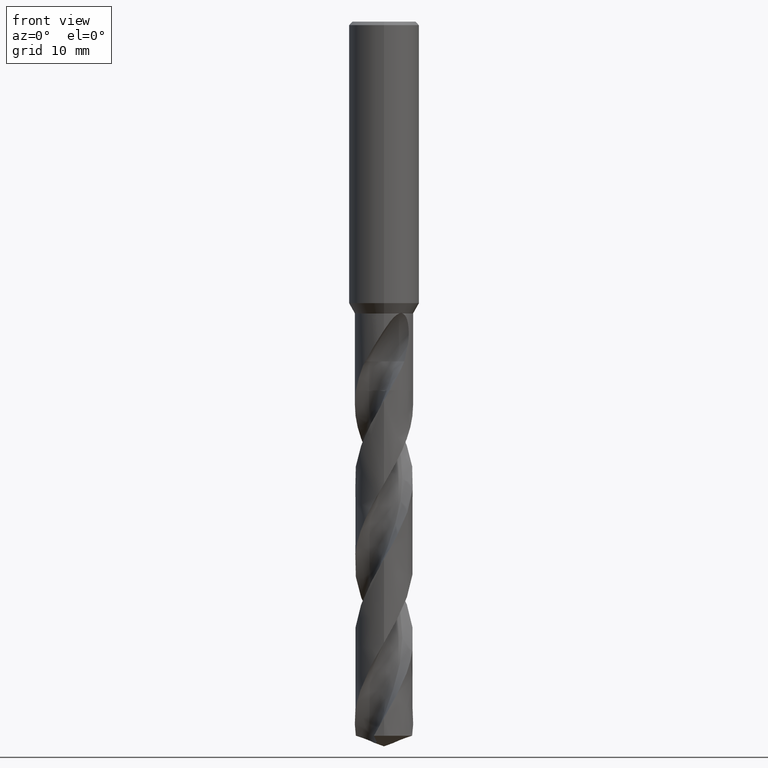
[diagram: clean part render]
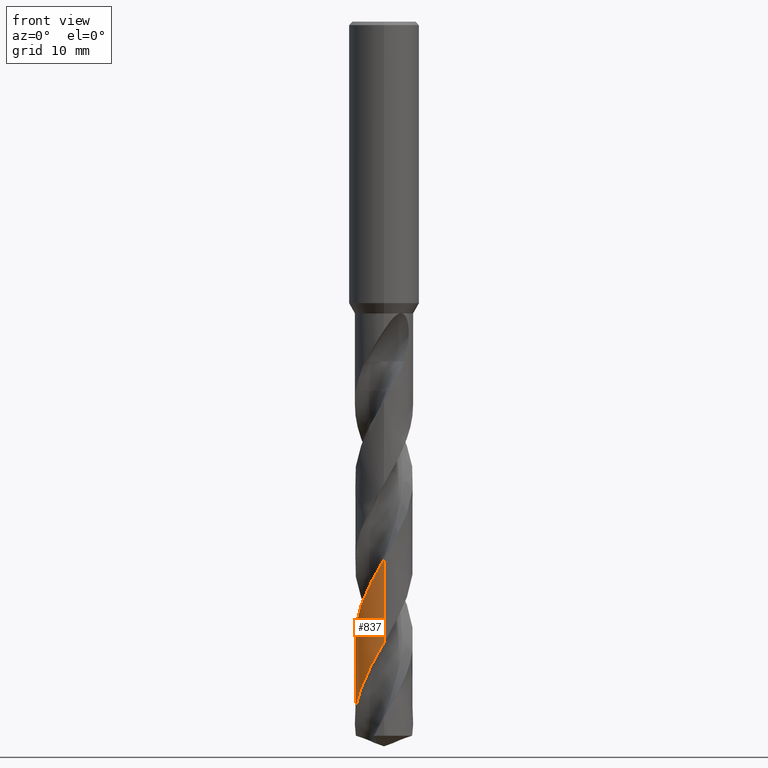
[diagram: same view with one face highlighted and labeled with its STEP entity id]
A machine part, front view. The second image highlights one B-rep face of the part: STEP entity #837.
In plain terms, the highlighted conical surface has half-angle 0 deg.
Its self-contained STEP definition (entity closure, byte-faithful):
#345=EDGE_CURVE('',#585,#783,#917,.T.);
#461=VERTEX_POINT('',#1049);
#543=EDGE_CURVE('',#585,#549,#1139,.T.);
#549=VERTEX_POINT('',#1145);
#575=EDGE_CURVE('',#609,#783,#1172,.T.);
#585=VERTEX_POINT('',#1182);
#609=VERTEX_POINT('',#1209);
#675=EDGE_CURVE('',#461,#609,#1280,.T.);
#773=EDGE_CURVE('',#549,#461,#1388,.T.);
#783=VERTEX_POINT('',#1399);
#837=ADVANCED_FACE('',(#1458),#1459,.T.);
#917=CIRCLE('',#1627,4.15);
#1049=CARTESIAN_POINT('',(-9.8340353032395E-013,-4.14994886221189,-76.3862270031662));
#1139=B_SPLINE_CURVE_WITH_KNOTS('',3,(#3986,#3987,#3988,#3989,#3990,#3991,#3992,#3993,#3994,#3995,#3996,#3997,#3998,#3999,#4000,#4001,#4002,#4003,#4004,#4005,#4006,#4007,#4008,#4009,#4010,#4011,#4012,#4013,#4014,#4015,#4016,#4017,#4018,#4019,#4020,#4021,#4022,#4023,#4024,#4025,#4026,#4027,#4028,#4029,#4030,#4031,#4032,#4033,#4034,#4035,#4036,#4037,#4038,#4039,#4040,#4041,#4042,#4043,#4044,#4045,#4046,#4047,#4048,#4049,#4050,#4051,#4052,#4053,#4054,#4055,#4056,#4057,#4058,#4059),.UNSPECIFIED.,.F.,.F.,(4,2,2,2,2,2,2,2,2,2,2,2,2,2,2,2,2,2,2,2,2,2,2,2,2,2,2,2,2,2,2,2,2,2,2,2,4),(0.0,0.733119962136167,3.94510879813884,4.34369131643443,5.32151416461971,6.12538844798272,6.17531505432983,7.64100654946401,8.37814269390565,9.8527233512437,10.575811062794,13.3147641823529,15.249658534027,17.2118726950978,19.1514968289801,21.1132472757636,23.0534574584097,25.0148424830024,26.9564301644431,28.9178713151104,30.9513168632988,33.1021604851118,34.7661922859804,36.5871046538584,37.1115938430845,37.9562288501293,41.3386930440463,41.9212233386471,45.3037452177209,45.8576423691643,48.8209535436904,50.3189651381546,53.4896423513451,53.5390767551717,55.1003001866832,55.8799575069006,56.6606755830554),.UNSPECIFIED.);
#1145=CARTESIAN_POINT('',(6.98160187065E-016,-4.14997308674582,-88.27793528246));
#1172=LINE('',#4798,#4799);
#1182=CARTESIAN_POINT('',(-4.00286083124981,1.09526488378203,-101.489523527795));
#1209=CARTESIAN_POINT('',(-3.36276316489481E-015,4.14999484291634,-98.9579357328024));
#1280=B_SPLINE_CURVE_WITH_KNOTS('',3,(#6514,#6515,#6516,#6517,#6518,#6519,#6520,#6521,#6522,#6523,#6524,#6525,#6526,#6527,#6528,#6529,#6530,#6531,#6532,#6533,#6534,#6535,#6536,#6537,#6538,#6539,#6540,#6541,#6542,#6543,#6544,#6545,#6546,#6547,#6548,#6549,#6550,#6551,#6552,#6553,#6554,#6555,#6556,#6557,#6558,#6559,#6560,#6561,#6562,#6563,#6564,#6565,#6566,#6567,#6568,#6569,#6570,#6571,#6572,#6573,#6574,#6575,#6576,#6577,#6578,#6579,#6580,#6581,#6582,#6583,#6584,#6585,#6586,#6587,#6588,#6589,#6590,#6591,#6592,#6593),.UNSPECIFIED.,.F.,.F.,(4,2,2,2,2,2,2,2,2,2,2,2,2,2,2,2,2,2,2,2,2,2,2,2,2,2,2,2,2,2,2,2,2,2,2,2,2,2,2,4),(0.0,0.586323067433811,2.00032587518458,2.80826885337776,3.60002817015878,4.36102634170996,4.76487063530696,5.52221860866281,6.87547708728846,7.3452181545955,10.3637754003876,12.139995461408,14.502759818268,15.3668709821972,18.3301455580527,20.1540144764571,22.4042918982399,23.2648435883228,26.1943236443563,28.0619265002188,30.0624330206784,32.0233662836091,34.2830585381587,35.1337158030373,38.0947299511382,39.9172825066326,41.8348863796892,43.852057861484,45.2622052300865,45.9985746502462,46.9813536521083,49.2718370121449,50.1990534031825,51.0079979685766,52.4267538570986,52.6927656751572,53.6929488001075,55.1954998972303,55.9462757200825,56.696452853873),.UNSPECIFIED.);
#1388=LINE('',#9299,#9300);
#1399=CARTESIAN_POINT('',(-5.08211636836286E-016,4.15,-101.489523527795));
#1458=FACE_OUTER_BOUND('',#9522,.T.);
#1459=CONICAL_SURFACE('',#9523,4.14995,2.03709453286926E-006);
#1627=AXIS2_PLACEMENT_3D('',#9890,#9891,#9892);
#3986=CARTESIAN_POINT('',(-4.00286083124982,1.09526488378203,-101.489523527795));
#3987=CARTESIAN_POINT('',(-4.03504066271313,0.977655728950244,-101.277743299675));
#3988=CARTESIAN_POINT('',(-4.06201011384078,0.858797654476587,-101.064850626866));
#3989=CARTESIAN_POINT('',(-4.17914587385562,0.210965987961346,-99.9207766518387));
#3990=CARTESIAN_POINT('',(-4.17149755588382,-0.330608218742273,-99.0052227548003));
#3991=CARTESIAN_POINT('',(-4.04702340763602,-0.921129931299631,-97.9593980896529));
#3992=CARTESIAN_POINT('',(-4.03172994710662,-0.985910536822844,-97.843831378145));
#3993=CARTESIAN_POINT('',(-3.97357622724045,-1.20820974671838,-97.4453482115644));
#3994=CARTESIAN_POINT('',(-3.92294640169079,-1.36369350358373,-97.1630093298879));
#3995=CARTESIAN_POINT('',(-3.8141033179038,-1.64106902712961,-96.6475302097936));
#3996=CARTESIAN_POINT('',(-3.75899442182016,-1.7636247738402,-96.4152861525449));
#3997=CARTESIAN_POINT('',(-3.6943372460219,-1.89059560983668,-96.1680921449709));
#3998=CARTESIAN_POINT('',(-3.69053573211859,-1.89800562287905,-96.1536413678278));
#3999=CARTESIAN_POINT('',(-3.5742942749695,-2.12291440030594,-95.7144563261599));
#4000=CARTESIAN_POINT('',(-3.44275266010804,-2.33024441643967,-95.2921013555985));
#4001=CARTESIAN_POINT('',(-3.2184128193831,-2.62286627300436,-94.6543537529134));
#4002=CARTESIAN_POINT('',(-3.13905767063328,-2.71733091713232,-94.4407123580425));
#4003=CARTESIAN_POINT('',(-2.88883969380872,-2.98960847752257,-93.8003976103759));
#4004=CARTESIAN_POINT('',(-2.70643187817836,-3.15562739345708,-93.3758597433649));
#4005=CARTESIAN_POINT('',(-2.41480373869133,-3.37721743262094,-92.7389793771779));
#4006=CARTESIAN_POINT('',(-2.31552818942792,-3.44605829696359,-92.5284513332559));
#4007=CARTESIAN_POINT('',(-1.82547022316747,-3.755002535148,-91.5235418678276));
#4008=CARTESIAN_POINT('',(-1.40007492136837,-3.93348288653247,-90.7451698808831));
#4009=CARTESIAN_POINT('',(-0.638700762875209,-4.11330122043334,-89.3902404456546));
#4010=CARTESIAN_POINT('',(-0.315930275489004,-4.150641464583,-88.8241412346744));
#4011=CARTESIAN_POINT('',(0.337806485620592,-4.14927706743415,-87.6939062714144));
#4012=CARTESIAN_POINT('',(0.665493723450718,-4.10943836864885,-87.1311549892286));
#4013=CARTESIAN_POINT('',(1.30062518471142,-3.9542693037718,-85.999542964849));
#4014=CARTESIAN_POINT('',(1.6060438598501,-3.84041913324769,-85.4323270855775));
#4015=CARTESIAN_POINT('',(2.18850943928793,-3.54133233999955,-84.3006472206212));
#4016=CARTESIAN_POINT('',(2.4622464239698,-3.35673622004514,-83.7378304449957));
#4017=CARTESIAN_POINT('',(2.95743497346943,-2.92942538638761,-82.6059180029684));
#4018=CARTESIAN_POINT('',(3.177644092677,-2.68900715728512,-82.0383217950532));
#4019=CARTESIAN_POINT('',(3.56019809962554,-2.157655759826,-80.9063583493413));
#4020=CARTESIAN_POINT('',(3.71995498628274,-1.86875357326637,-80.3435892494735));
#4021=CARTESIAN_POINT('',(3.9666132691593,-1.26257379099911,-79.2113491623315));
#4022=CARTESIAN_POINT('',(4.05331615848658,-0.948080209579002,-78.6433720256095));
#4023=CARTESIAN_POINT('',(4.15210135779381,-0.30073966376471,-77.5110211287447));
#4024=CARTESIAN_POINT('',(4.16286243563838,0.0292031213900084,-76.9482542342553));
#4025=CARTESIAN_POINT('',(4.1052444577117,0.696644840980988,-75.7895266640975));
#4026=CARTESIAN_POINT('',(4.03427834066105,1.03107071664337,-75.1947491400784));
#4027=CARTESIAN_POINT('',(3.80522546828506,1.6948692679812,-73.9810175393926));
#4028=CARTESIAN_POINT('',(3.64359698031552,2.01887360692878,-73.3651163403327));
#4029=CARTESIAN_POINT('',(3.28697934412767,2.54859972985332,-72.2580115767764));
#4030=CARTESIAN_POINT('',(3.10850483738276,2.7635547757794,-71.7709921611557));
#4031=CARTESIAN_POINT('',(2.69129450921086,3.17369855010188,-70.7589191275941));
#4032=CARTESIAN_POINT('',(2.45022798092235,3.36332653160746,-70.2352118870299));
#4033=CARTESIAN_POINT('',(2.11550376503302,3.57132612703493,-69.5545369313536));
#4034=CARTESIAN_POINT('',(2.03931561837821,3.61536489135379,-69.4023641816305));
#4035=CARTESIAN_POINT('',(1.83728483742688,3.72375354848006,-69.0045687433204));
#4036=CARTESIAN_POINT('',(1.70974800795879,3.78397939709404,-68.7581366416652));
#4037=CARTESIAN_POINT('',(1.05867954271813,4.05197820978874,-67.5324781895851));
#4038=CARTESIAN_POINT('',(0.500198915509941,4.157918701973,-66.5824873902307));
#4039=CARTESIAN_POINT('',(-0.159278628045266,4.1480007684965,-65.4345537535467));
#4040=CARTESIAN_POINT('',(-0.255827069197382,4.1431671893572,-65.2655329761599));
#4041=CARTESIAN_POINT('',(-0.91316890963133,4.08714268073476,-64.117093673756));
#4042=CARTESIAN_POINT('',(-1.45754746612428,3.92595406521365,-63.1684460864815));
#4043=CARTESIAN_POINT('',(-2.03447362167824,3.61817849226968,-62.0299117236023));
#4044=CARTESIAN_POINT('',(-2.11393608649308,3.57233118946485,-61.8694001149606));
#4045=CARTESIAN_POINT('',(-2.60945298085117,3.26409274044161,-60.8525140771719));
#4046=CARTESIAN_POINT('',(-2.97818509056936,2.93192305082293,-60.0162718507665));
#4047=CARTESIAN_POINT('',(-3.43357947129834,2.34406764895128,-58.7308568167197));
#4048=CARTESIAN_POINT('',(-3.56801388812336,2.13377870463037,-58.2967699271014));
#4049=CARTESIAN_POINT('',(-3.92561355716439,1.44530461308424,-56.9517384287197));
#4050=CARTESIAN_POINT('',(-4.07705321721444,0.936012705416754,-56.0520129936649));
#4051=CARTESIAN_POINT('',(-4.1301640999389,0.404385781712552,-55.1247942966925));
#4052=CARTESIAN_POINT('',(-4.1309547027472,0.396227793785232,-55.1105670046392));
#4053=CARTESIAN_POINT('',(-4.15596300872301,0.129947839233376,-54.6464363698268));
#4054=CARTESIAN_POINT('',(-4.15599510042753,-0.130144303806569,-54.1994393672908));
#4055=CARTESIAN_POINT('',(-4.11948157093959,-0.518075732752643,-53.5256073673882));
#4056=CARTESIAN_POINT('',(-4.10127565016572,-0.646504711659597,-53.3012527130088));
#4057=CARTESIAN_POINT('',(-4.05299455015468,-0.900945878530776,-52.8519320371249));
#4058=CARTESIAN_POINT('',(-4.02311329375068,-1.025975181467,-52.6277129986327));
#4059=CARTESIAN_POINT('',(-3.9876645377204,-1.14900027233581,-52.4048038270217));
#4798=CARTESIAN_POINT('',(-5.08271900396723E-016,4.14995,-76.9447617638976));
#4799=VECTOR('',#10161,1.0);
#6514=CARTESIAN_POINT('',(-0.809450641502194,4.07019160860088,-52.4036524301839));
#6515=CARTESIAN_POINT('',(-0.713554071194105,4.08926318517703,-52.5728780666497));
#6516=CARTESIAN_POINT('',(-0.617061507869635,4.10493025676811,-52.7422326771811));
#6517=CARTESIAN_POINT('',(-0.286437898108493,4.14670141869942,-53.3196699330514));
#6518=CARTESIAN_POINT('',(-0.0505770864741414,4.15628267541381,-53.7268509006525));
#6519=CARTESIAN_POINT('',(0.319420468947908,4.1397838602985,-54.3681220203433));
#6520=CARTESIAN_POINT('',(0.453611417218903,4.12723803772816,-54.6011374700635));
#6521=CARTESIAN_POINT('',(0.717674425384147,4.08950957126924,-55.0627661745399));
#6522=CARTESIAN_POINT('',(0.847371198748661,4.06461501494834,-55.2910471673395));
#6523=CARTESIAN_POINT('',(1.09891703601151,4.00377262506163,-55.7392168681408));
#6524=CARTESIAN_POINT('',(1.22076943418806,3.9683171334602,-55.9587997088806));
#6525=CARTESIAN_POINT('',(1.40450965677961,3.90558822200232,-56.2950048140758));
#6526=CARTESIAN_POINT('',(1.46767830751557,3.88229193545421,-56.4115444989714));
#6527=CARTESIAN_POINT('',(1.6476155530438,3.81091154178771,-56.7466765120219));
#6528=CARTESIAN_POINT('',(1.76279246623565,3.75902280952958,-56.9651146678288));
#6529=CARTESIAN_POINT('',(2.0766879031118,3.6000036306962,-57.5742414334145));
#6530=CARTESIAN_POINT('',(2.26932078090337,3.48179139183426,-57.9640123006853));
#6531=CARTESIAN_POINT('',(2.51460993037964,3.30221831129288,-58.4900852976674));
#6532=CARTESIAN_POINT('',(2.57645851427004,3.25419176556882,-58.6255557785414));
#6533=CARTESIAN_POINT('',(3.02531174575587,2.88483915593859,-59.6326795782373));
#6534=CARTESIAN_POINT('',(3.35287544725406,2.49681190181006,-60.4989856153255));
#6535=CARTESIAN_POINT('',(3.75014293693105,1.80172679035776,-61.8828013512578));
#6536=CARTESIAN_POINT('',(3.86910152505008,1.52951649276333,-62.3942119494236));
#6537=CARTESIAN_POINT('',(4.07631739607947,0.871995348235847,-63.589768151126));
#6538=CARTESIAN_POINT('',(4.14075449224596,0.481282815055007,-64.2682467037824));
#6539=CARTESIAN_POINT('',(4.15203703109984,-0.0573410979354688,-65.1995098309693));
#6540=CARTESIAN_POINT('',(4.147534555915,-0.20150380329665,-65.4484810533826));
#6541=CARTESIAN_POINT('',(4.09447556431875,-0.837417899060476,-66.5539029055257));
#6542=CARTESIAN_POINT('',(3.9657189469699,-1.3190801246937,-67.4050175280715));
#6543=CARTESIAN_POINT('',(3.62527935989835,-2.04257202817353,-68.7872557268848));
#6544=CARTESIAN_POINT('',(3.46576062486579,-2.30279007024165,-69.3127294062759));
#6545=CARTESIAN_POINT('',(3.04971665760977,-2.83933682712082,-70.4899836288582));
#6546=CARTESIAN_POINT('',(2.78056343553118,-3.10349907820304,-71.1365655609795));
#6547=CARTESIAN_POINT('',(2.36390319841118,-3.41388652390134,-72.034694649105));
#6548=CARTESIAN_POINT('',(2.24436678802764,-3.49362625238155,-72.282744825843));
#6549=CARTESIAN_POINT('',(1.70103778503728,-3.81670327850428,-73.3778135226615));
#6550=CARTESIAN_POINT('',(1.23972416353378,-3.99058127235028,-74.2197999130246));
#6551=CARTESIAN_POINT('',(0.451650150325278,-4.13708376894307,-75.6054605786079));
#6552=CARTESIAN_POINT('',(0.139721364140183,-4.15926648918934,-76.1436005111664));
#6553=CARTESIAN_POINT('',(-0.504616731665532,-4.13263715039405,-77.2617766905972));
#6554=CARTESIAN_POINT('',(-0.835345142104359,-4.0787289220349,-77.8376544589695));
#6555=CARTESIAN_POINT('',(-1.47104159305374,-3.89429202609177,-78.9818984615329));
#6556=CARTESIAN_POINT('',(-1.77345254431343,-3.76614797249428,-79.5466205790853));
#6557=CARTESIAN_POINT('',(-2.38454153749317,-3.41731381575357,-80.7666714940171));
#6558=CARTESIAN_POINT('',(-2.68511494690212,-3.18666961265347,-81.4161425649724));
#6559=CARTESIAN_POINT('',(-3.05055258240267,-2.81718037099878,-82.3144808522254));
#6560=CARTESIAN_POINT('',(-3.14514757547519,-2.71115661323792,-82.5597910554599));
#6561=CARTESIAN_POINT('',(-3.54366907619769,-2.21555272128551,-83.6615529842133));
#6562=CARTESIAN_POINT('',(-3.78238419383585,-1.77785382716674,-84.5126724485249));
#6563=CARTESIAN_POINT('',(-4.03443561920026,-1.01900899242163,-85.8949450292475));
#6564=CARTESIAN_POINT('',(-4.09823641726694,-0.720496703982164,-86.4204641030282));
#6565=CARTESIAN_POINT('',(-4.16108160178382,-0.0998292351477255,-87.5020034000937));
#6566=CARTESIAN_POINT('',(-4.1564413391571,0.221388044000138,-88.0543744565511));
#6567=CARTESIAN_POINT('',(-4.07098582459152,0.873531620780959,-89.1913149506217));
#6568=CARTESIAN_POINT('',(-3.98665135310596,1.2008388860726,-89.7721246887443));
#6569=CARTESIAN_POINT('',(-3.77819657253114,1.7328652483603,-90.7633556324888));
#6570=CARTESIAN_POINT('',(-3.67390355405256,1.94428336589662,-91.1705457262972));
#6571=CARTESIAN_POINT('',(-3.48850954570904,2.25116984402882,-91.7909765132387));
#6572=CARTESIAN_POINT('',(-3.42023590005435,2.35360968335123,-92.0036277353889));
#6573=CARTESIAN_POINT('',(-3.25037542289483,2.58542023614415,-92.5003947796857));
#6574=CARTESIAN_POINT('',(-3.14553925344656,2.71198856226611,-92.7838687048652));
#6575=CARTESIAN_POINT('',(-2.77244613332795,3.11163590692395,-93.7300998780487));
#6576=CARTESIAN_POINT('',(-2.47395679109492,3.35383349483751,-94.3894989934233));
#6577=CARTESIAN_POINT('',(-2.01412615119345,3.63175758081579,-95.3198955249143));
#6578=CARTESIAN_POINT('',(-1.87722187737927,3.70437917126462,-95.5877850981441));
#6579=CARTESIAN_POINT('',(-1.61383431571763,3.82572937805675,-96.0897422312488));
#6580=CARTESIAN_POINT('',(-1.48844117680785,3.876235738412,-96.3234383923334));
#6581=CARTESIAN_POINT('',(-1.13700787894817,3.99822039506513,-96.9675767607062));
#6582=CARTESIAN_POINT('',(-0.906902875885015,4.05661579831907,-97.3770805773355));
#6583=CARTESIAN_POINT('',(-0.629179473382949,4.10226116804075,-97.8641680797187));
#6584=CARTESIAN_POINT('',(-0.585223795329596,4.10876223263934,-97.9410567313226));
#6585=CARTESIAN_POINT('',(-0.375549316561051,4.13634076711939,-98.3071891062927));
#6586=CARTESIAN_POINT('',(-0.208781880563971,4.1481024138533,-98.5963304693952));
#6587=CARTESIAN_POINT('',(0.209102690613209,4.15231115632249,-99.3201052405814));
#6588=CARTESIAN_POINT('',(0.459778032523291,4.1320821930541,-99.7536734826014));
#6589=CARTESIAN_POINT('',(0.830770416520487,4.06792801501628,-100.405172648677));
#6590=CARTESIAN_POINT('',(0.953362274423475,4.04095655430756,-100.622087688651));
#6591=CARTESIAN_POINT('',(1.1956589551,3.97600445175011,-101.05601521291));
#6592=CARTESIAN_POINT('',(1.31513351348801,3.93809647197319,-101.272505349523));
#6593=CARTESIAN_POINT('',(1.43266879727039,3.8948632989269,-101.489523527795));
#9299=CARTESIAN_POINT('',(5.08139127212312E-016,-4.14995,-76.9447617638976));
#9300=VECTOR('',#10368,1.0);
#9522=EDGE_LOOP('',(#10433,#10434,#10435,#10436,#10437));
#9523=AXIS2_PLACEMENT_3D('',#10438,#10439,#10440);
#9890=CARTESIAN_POINT('',(0.0,0.0,-101.489523527795));
#9891=DIRECTION('',(0.0,0.0,-1.0));
#9892=DIRECTION('',(0.0,1.0,0.0));
#10161=DIRECTION('',(-2.4946389082868E-022,2.03709453286785E-006,-0.999999999997925));
#10368=DIRECTION('',(-2.4946389082868E-022,2.03709453286785E-006,0.999999999997925));
#10433=ORIENTED_EDGE('',*,*,#575,.T.);
#10434=ORIENTED_EDGE('',*,*,#345,.F.);
#10435=ORIENTED_EDGE('',*,*,#543,.T.);
#10436=ORIENTED_EDGE('',*,*,#773,.T.);
#10437=ORIENTED_EDGE('',*,*,#675,.T.);
#10438=CARTESIAN_POINT('',(0.0,0.0,-76.9447617638976));
#10439=DIRECTION('',(0.0,-0.0,-1.0));
#10440=DIRECTION('',(0.0,1.0,0.0));